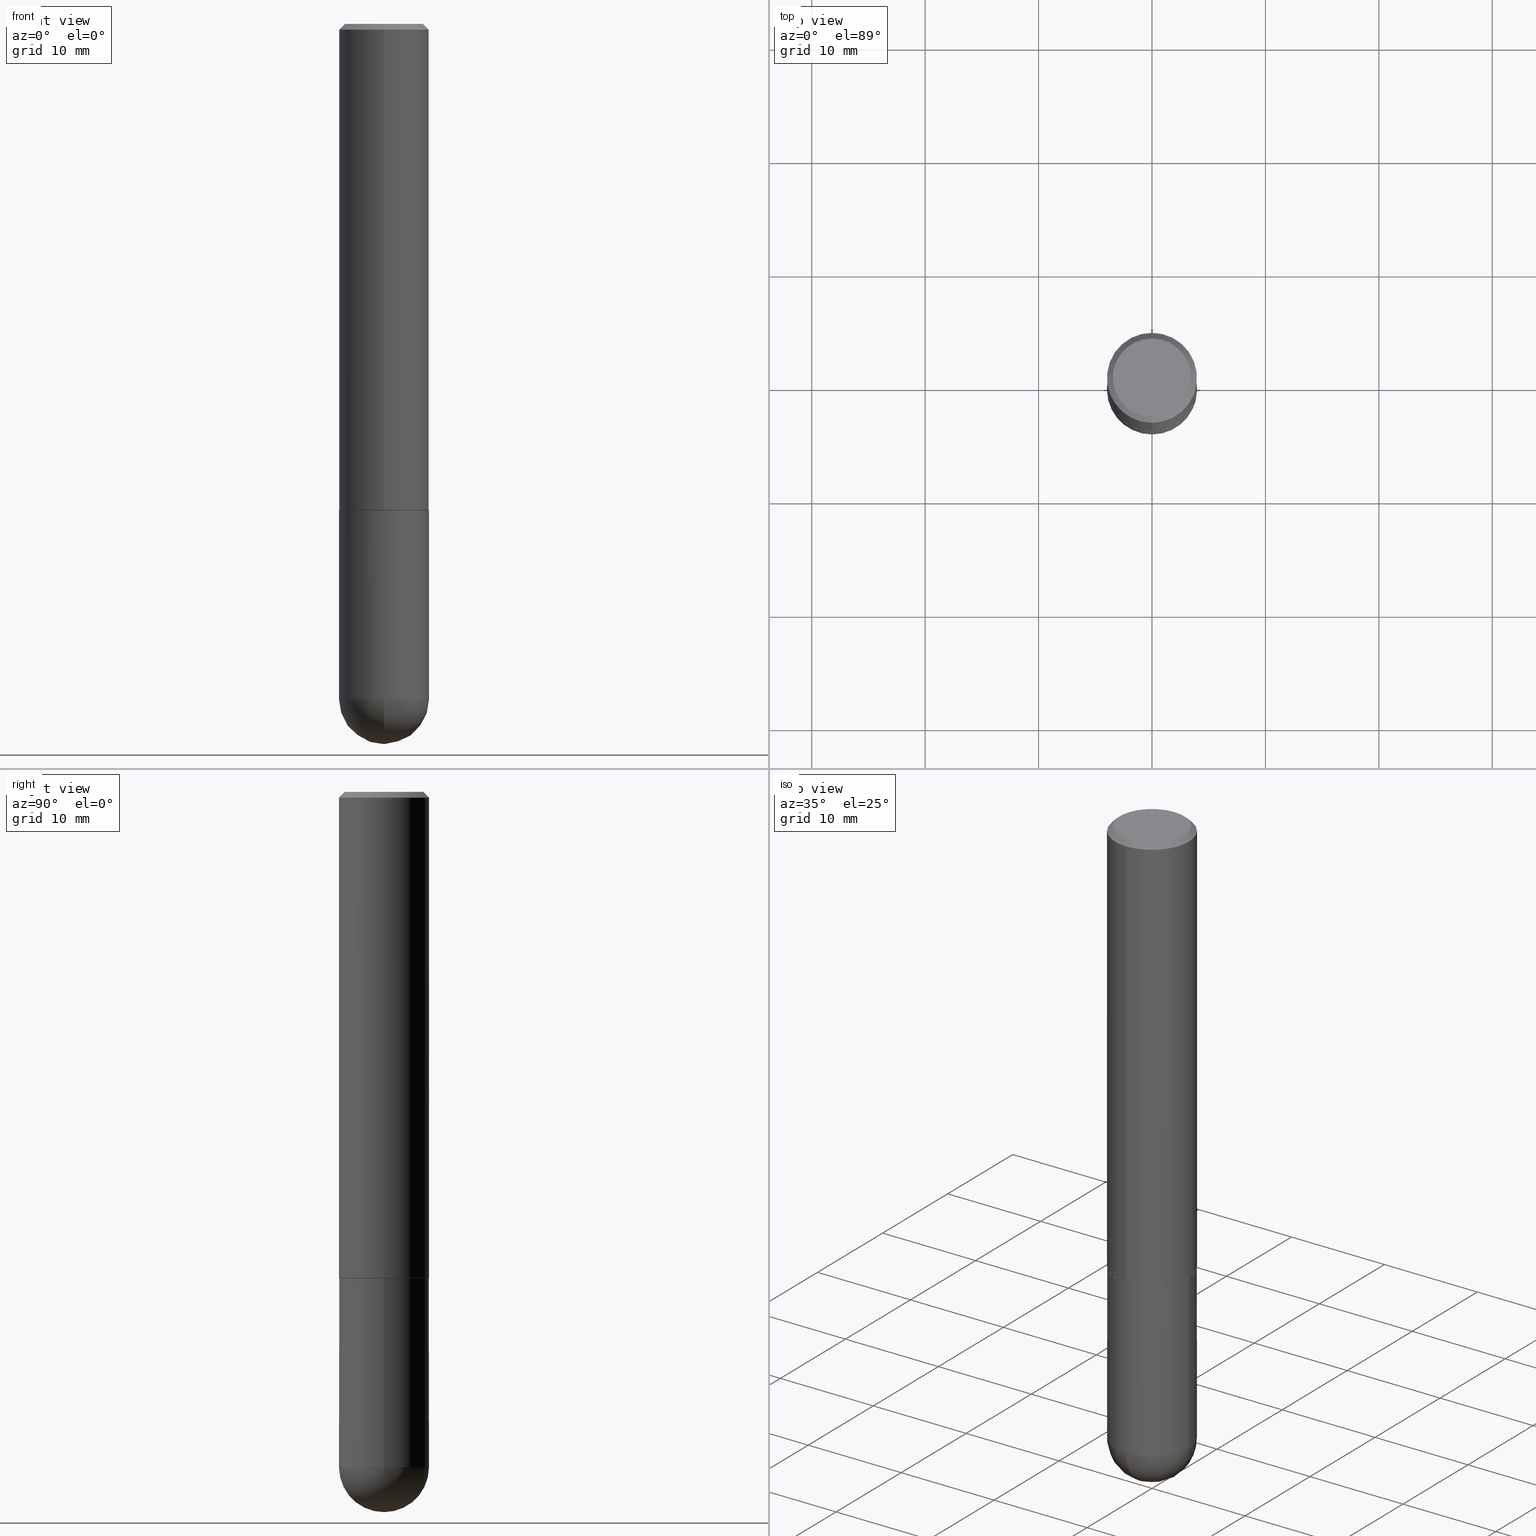
[diagram: canonical four-view strip — front | top / right | iso, engineering-drawing reading convention]
A machine part, canonical four-view strip (front | top / right | iso — engineering-drawing reading convention). The complete STEP part file that produces these views, byte-faithful:
ISO-10303-21;
HEADER;
FILE_DESCRIPTION (( 'STEP AP203' ),
    '1' );
FILE_NAME ('31149.STEP',
    '2024-02-21T16:48:06',
    ( '' ),
    ( '' ),
    'SwSTEP 2.0',
    'SolidWorks 2023',
    '' );
FILE_SCHEMA (( 'CONFIG_CONTROL_DESIGN' ));
ENDSEC;

DATA;
#1 = DIRECTION ( 'NONE',  ( 1.000000000000000000, -6.982962677686262766E-15, 0.000000000000000000 ) ) ;
#2 = CARTESIAN_POINT ( 'NONE',  ( 1.110223024625157132E-15, 0.1562500000000001110, -5.454067469963343169E-16 ) ) ;
#3 = APPROVAL_DATE_TIME ( #344, #378 ) ;
#4 = AXIS2_PLACEMENT_3D ( 'NONE', #337, #58, #28 ) ;
#5 = CIRCLE ( 'NONE', #222, 0.1562500000000000000 ) ;
#6 = ORIENTED_EDGE ( 'NONE', *, *, #275, .T. ) ;
#7 = CARTESIAN_POINT ( 'NONE',  ( 5.400447736582527652E-29, -8.657341756053672891E-15, -2.343750000000000000 ) ) ;
#8 = ADVANCED_FACE ( 'NONE', ( #206 ), #21, .T. ) ;
#9 = PERSON_AND_ORGANIZATION ( #151, #359 ) ;
#10 = LINE ( 'NONE', #78, #242 ) ;
#11 = DIRECTION ( 'NONE',  ( 6.982962677686265922E-15, 1.000000000000000000, -3.496765431890251398E-15 ) ) ;
#12 = DIRECTION ( 'NONE',  ( 0.000000000000000000, 0.000000000000000000, 1.000000000000000000 ) ) ;
#13 = EDGE_CURVE ( 'NONE', #241, #402, #167, .T. ) ;
#14 = DIRECTION ( 'NONE',  ( -2.446082020685560042E-29, 3.490603180776537498E-15, 1.000000000000000000 ) ) ;
#15 = VECTOR ( 'NONE', #363, 39.37007874015748143 ) ;
#16 = ORIENTED_EDGE ( 'NONE', *, *, #214, .F. ) ;
#17 = CALENDAR_DATE ( 2024, 21, 2 ) ;
#18 = DIRECTION ( 'NONE',  ( 1.000000000000000000, -6.982962677686266711E-15, 4.876176775795936353E-29 ) ) ;
#19 = FACE_OUTER_BOUND ( 'NONE', #270, .T. ) ;
#20 = EDGE_LOOP ( 'NONE', ( #364, #301, #229, #87 ) ) ;
#21 = CYLINDRICAL_SURFACE ( 'NONE', #160, 0.1562500000000001110 ) ;
#22 = APPLICATION_CONTEXT ( 'configuration controlled 3d designs of mechanical parts and assemblies' ) ;
#23 = CARTESIAN_POINT ( 'NONE',  ( 4.892164041371128702E-31, -6.981206361553086139E-17, -0.02000000000000003511 ) ) ;
#24 = VERTEX_POINT ( 'NONE', #115 ) ;
#25 = DIRECTION ( 'NONE',  ( -2.446082020685560042E-29, 3.490603180776537498E-15, 1.000000000000000000 ) ) ;
#26 = PRODUCT_RELATED_PRODUCT_CATEGORY ( 'detail', '', ( #136 ) ) ;
#27 = ORIENTED_EDGE ( 'NONE', *, *, #106, .F. ) ;
#28 = DIRECTION ( 'NONE',  ( -6.982962677686265922E-15, -1.000000000000000000, 3.519288880726909138E-15 ) ) ;
#29 = DIRECTION ( 'NONE',  ( 2.446082020685559481E-29, -3.490603180776537498E-15, -1.000000000000000000 ) ) ;
#30 = VECTOR ( 'NONE', #209, 39.37007874015748143 ) ;
#31 = ADVANCED_FACE ( 'NONE', ( #19 ), #373, .T. ) ;
#32 = UNCERTAINTY_MEASURE_WITH_UNIT (LENGTH_MEASURE( 1.000000000000000082E-05 ), #233, 'distance_accuracy_value', 'NONE');
#33 = CARTESIAN_POINT ( 'NONE',  ( -1.003347832174086081E-15, -0.1362500000000000100, 5.053546217749307002E-16 ) ) ;
#34 = SECURITY_CLASSIFICATION_LEVEL ( 'unclassified' ) ;
#35 = CARTESIAN_POINT ( 'NONE',  ( 5.731567514496413899E-29, -8.183159387913622595E-15, -2.343750000000000000 ) ) ;
#36 = CIRCLE ( 'NONE', #286, 0.1562500000000000000 ) ;
#37 = CALENDAR_DATE ( 2024, 21, 2 ) ;
#38 = APPROVAL_DATE_TIME ( #85, #341 ) ;
#39 = APPROVAL_STATUS ( 'not_yet_approved' ) ;
#40 = MECHANICAL_CONTEXT ( 'NONE', #217, 'mechanical' ) ;
#41 = CARTESIAN_POINT ( 'NONE',  ( 4.128986450917225387E-29, -5.892138169150795047E-15, -1.688000000000000167 ) ) ;
#42 = DIRECTION ( 'NONE',  ( 5.024295867788404755E-15, 0.7071067811865981989, 0.7071067811864968355 ) ) ;
#43 = CIRCLE ( 'NONE', #350, 0.1562500000000000000 ) ;
#44 = LOCAL_TIME ( 11, 48, 6.000000000000000000, #290 ) ;
#45 = CARTESIAN_POINT ( 'NONE',  ( 0.1562500000000000000, -6.984708418355709513E-15, -1.688000000000000167 ) ) ;
#46 = CC_DESIGN_PERSON_AND_ORGANIZATION_ASSIGNMENT ( #52, #178, ( #136 ) ) ;
#47 = EDGE_LOOP ( 'NONE', ( #361, #6, #92, #127, #84 ) ) ;
#48 = CIRCLE ( 'NONE', #328, 0.1562500000000002498 ) ;
#49 = LOCAL_TIME ( 11, 48, 6.000000000000000000, #216 ) ;
#50 = VERTEX_POINT ( 'NONE', #273 ) ;
#51 = EDGE_LOOP ( 'NONE', ( #171, #91, #118, #295 ) ) ;
#52 = PERSON_AND_ORGANIZATION ( #151, #359 ) ;
#53 = CC_DESIGN_PERSON_AND_ORGANIZATION_ASSIGNMENT ( #189, #258, ( #173 ) ) ;
#54 = CLOSED_SHELL ( 'NONE', ( #145, #68, #98, #143, #8, #59, #218, #289 ) ) ;
#55 = VECTOR ( 'NONE', #105, 39.37007874015748143 ) ;
#56 = PERSON_AND_ORGANIZATION ( #151, #359 ) ;
#57 = ORIENTED_EDGE ( 'NONE', *, *, #169, .T. ) ;
#58 = DIRECTION ( 'NONE',  ( -2.446082020685560042E-29, 3.490603180776537498E-15, 1.000000000000000000 ) ) ;
#59 = ADVANCED_FACE ( 'NONE', ( #356 ), #297, .T. ) ;
#60 = VERTEX_POINT ( 'NONE', #45 ) ;
#61 = DIRECTION ( 'NONE',  ( 1.000000000000000000, -6.982962677686262766E-15, 0.000000000000000000 ) ) ;
#62 = DIRECTION ( 'NONE',  ( 1.000000000000000000, -6.982962677686262766E-15, 0.000000000000000000 ) ) ;
#63 = PLANE ( 'NONE',  #125 ) ;
#64 = DIRECTION ( 'NONE',  ( -2.445468806185136877E-29, 3.491481338843145188E-15, 1.000000000000000000 ) ) ;
#65 = DIRECTION ( 'NONE',  ( -2.446082020685560042E-29, 3.490603180776537498E-15, 1.000000000000000000 ) ) ;
#66 = DIRECTION ( 'NONE',  ( 1.000000000000000000, -6.982962677686266711E-15, 4.876176775795936353E-29 ) ) ;
#67 = ORIENTED_EDGE ( 'NONE', *, *, #352, .F. ) ;
#68 = ADVANCED_FACE ( 'NONE', ( #234 ), #165, .T. ) ;
#69 = CARTESIAN_POINT ( 'NONE',  ( 1.091087918388479568E-15, 0.1562499999999999445, -0.02000000000000057981 ) ) ;
#70 = DIRECTION ( 'NONE',  ( -6.982962677686265922E-15, -1.000000000000000000, 3.519288880726909138E-15 ) ) ;
#71 = CONICAL_SURFACE ( 'NONE', #203, 0.1562500000000000000, 0.7853981633974469467 ) ;
#72 = CC_DESIGN_APPROVAL ( #378, ( #148 ) ) ;
#73 = DIRECTION ( 'NONE',  ( 6.982962677686265922E-15, 1.000000000000000000, -3.490603180776537498E-15 ) ) ;
#74 =( NAMED_UNIT ( * ) PLANE_ANGLE_UNIT ( ) SI_UNIT ( $, .RADIAN. ) );
#75 = EDGE_CURVE ( 'NONE', #402, #241, #406, .T. ) ;
#76 = ADVANCED_FACE ( 'NONE', ( #116 ), #326, .T. ) ;
#77 = FACE_OUTER_BOUND ( 'NONE', #238, .T. ) ;
#78 = CARTESIAN_POINT ( 'NONE',  ( 1.103117597267596553E-15, 0.1552499999999940872, -1.688000000000000611 ) ) ;
#79 = AXIS2_PLACEMENT_3D ( 'NONE', #266, #12, #137 ) ;
#80 = DIRECTION ( 'NONE',  ( -2.446082020685560042E-29, 3.490603180776537498E-15, 1.000000000000000000 ) ) ;
#81 = ADVANCED_FACE ( 'NONE', ( #142 ), #199, .T. ) ;
#82 = CARTESIAN_POINT ( 'NONE',  ( -7.279525024258520080E-46, 1.038801356182552890E-31, 2.975993839412750979E-17 ) ) ;
#83 = EDGE_LOOP ( 'NONE', ( #261, #237, #285, #305 ) ) ;
#84 = ORIENTED_EDGE ( 'NONE', *, *, #135, .T. ) ;
#85 = DATE_AND_TIME ( #170, #408 ) ;
#86 = DIRECTION ( 'NONE',  ( -6.982962677686265922E-15, -1.000000000000000000, 3.496765431890251792E-15 ) ) ;
#87 = ORIENTED_EDGE ( 'NONE', *, *, #110, .F. ) ;
#88 = AXIS2_PLACEMENT_3D ( 'NONE', #7, #382, #405 ) ;
#89 = DIRECTION ( 'NONE',  ( 2.446082020685560042E-29, -3.490603180776537498E-15, -1.000000000000000000 ) ) ;
#90 = APPROVAL_PERSON_ORGANIZATION ( #324, #341, #362 ) ;
#91 = ORIENTED_EDGE ( 'NONE', *, *, #188, .T. ) ;
#92 = ORIENTED_EDGE ( 'NONE', *, *, #277, .F. ) ;
#93 = CARTESIAN_POINT ( 'NONE',  ( 4.892164041371128702E-31, -6.981206361553086139E-17, -0.02000000000000003511 ) ) ;
#94 = CARTESIAN_POINT ( 'NONE',  ( 5.731567514496413899E-29, -8.183159387913622595E-15, -2.343750000000000000 ) ) ;
#95 = CARTESIAN_POINT ( 'NONE',  ( 1.110223024625178431E-15, 0.1562499999999943379, -1.687000000000000499 ) ) ;
#96 = CARTESIAN_POINT ( 'NONE',  ( 0.1562500000000000000, -8.129477862328905246E-15, -2.343750000000000000 ) ) ;
#97 = APPROVAL_STATUS ( 'not_yet_approved' ) ;
#98 = ADVANCED_FACE ( 'NONE', ( #77 ), #334, .T. ) ;
#99 = CC_DESIGN_PERSON_AND_ORGANIZATION_ASSIGNMENT ( #56, #370, ( #173 ) ) ;
#100 = DIRECTION ( 'NONE',  ( 2.438088387897960049E-29, -3.491481338843145188E-15, -1.000000000000000000 ) ) ;
#101 = MANIFOLD_SOLID_BREP ( 'Body-Move/Copy2[2]', #54 ) ;
#102 = VERTEX_POINT ( 'NONE', #121 ) ;
#103 = PERSON_AND_ORGANIZATION_ROLE ( 'classification_officer' ) ;
#104 = LINE ( 'NONE', #69, #30 ) ;
#105 = DIRECTION ( 'NONE',  ( -4.851104656540957175E-15, -0.7071067811865490160, -0.7071067811865460184 ) ) ;
#106 = EDGE_CURVE ( 'NONE', #50, #330, #399, .T. ) ;
#107 = VERTEX_POINT ( 'NONE', #243 ) ;
#108 = DIRECTION ( 'NONE',  ( 1.000000000000000000, -6.982962677686269077E-15, 0.000000000000000000 ) ) ;
#109 =( LENGTH_UNIT ( ) NAMED_UNIT ( * ) SI_UNIT ( $, .METRE. ) );
#110 = EDGE_CURVE ( 'NONE', #159, #330, #390, .T. ) ;
#111 = VECTOR ( 'NONE', #25, 39.37007874015748143 ) ;
#112 = EDGE_CURVE ( 'NONE', #24, #303, #36, .T. ) ;
#113 = CARTESIAN_POINT ( 'NONE',  ( 5.731567514496413899E-29, -8.183159387913622595E-15, -2.343750000000000000 ) ) ;
#114 = CIRCLE ( 'NONE', #138, 0.1562500000000000000 ) ;
#115 = CARTESIAN_POINT ( 'NONE',  ( -1.071952812151801215E-15, -0.1562500000000000833, -0.01999999999999948694 ) ) ;
#116 = FACE_OUTER_BOUND ( 'NONE', #47, .T. ) ;
#117 = DIRECTION ( 'NONE',  ( -2.446082020685560042E-29, 3.490603180776537498E-15, 1.000000000000000000 ) ) ;
#118 = ORIENTED_EDGE ( 'NONE', *, *, #369, .F. ) ;
#119 = CARTESIAN_POINT ( 'NONE',  ( -1.084104955710751547E-15, -0.1552500000000059110, -1.687999999999999501 ) ) ;
#120 = AXIS2_PLACEMENT_3D ( 'NONE', #175, #299, #18 ) ;
#121 = CARTESIAN_POINT ( 'NONE',  ( 1.106670310946397649E-15, 0.1552499999999940872, -1.688000000000000611 ) ) ;
#122 = ORIENTED_EDGE ( 'NONE', *, *, #294, .T. ) ;
#123 = PERSON_AND_ORGANIZATION ( #151, #359 ) ;
#124 = EDGE_CURVE ( 'NONE', #330, #24, #268, .T. ) ;
#125 = AXIS2_PLACEMENT_3D ( 'NONE', #132, #100, #190 ) ;
#126 = CARTESIAN_POINT ( 'NONE',  ( 4.128986450917225387E-29, -5.892138169150795047E-15, -1.688000000000000167 ) ) ;
#127 = ORIENTED_EDGE ( 'NONE', *, *, #257, .F. ) ;
#128 = CARTESIAN_POINT ( 'NONE',  ( 4.127951344840510809E-29, -5.893620499967230340E-15, -1.688000000000000167 ) ) ;
#129 = LINE ( 'NONE', #345, #395 ) ;
#130 = DIRECTION ( 'NONE',  ( 1.000000000000000000, -6.982962677686265922E-15, 4.883557194083112340E-29 ) ) ;
#131 = ORIENTED_EDGE ( 'NONE', *, *, #112, .F. ) ;
#132 = CARTESIAN_POINT ( 'NONE',  ( 1.091087918388520392E-15, 0.1562499999999940881, -1.688000000000000611 ) ) ;
#133 = CARTESIAN_POINT ( 'NONE',  ( 0.000000000000000000, 0.000000000000000000, 0.000000000000000000 ) ) ;
#134 = CARTESIAN_POINT ( 'NONE',  ( 0.1562500000000000000, -1.091087918388479174E-15, 7.619026212181150377E-30 ) ) ;
#135 = EDGE_CURVE ( 'NONE', #336, #316, #114, .T. ) ;
#136 = PRODUCT ( '31149', '31149', '', ( #40 ) ) ;
#137 = DIRECTION ( 'NONE',  ( 1.000000000000000000, 0.000000000000000000, 0.000000000000000000 ) ) ;
#138 = AXIS2_PLACEMENT_3D ( 'NONE', #113, #259, #351 ) ;
#139 = DIRECTION ( 'NONE',  ( -2.446082020685560042E-29, 3.490603180776537498E-15, 1.000000000000000000 ) ) ;
#140 = EDGE_LOOP ( 'NONE', ( #144, #176 ) ) ;
#141 = DATE_TIME_ROLE ( 'creation_date' ) ;
#142 = FACE_OUTER_BOUND ( 'NONE', #51, .T. ) ;
#143 = ADVANCED_FACE ( 'NONE', ( #250 ), #71, .T. ) ;
#144 = ORIENTED_EDGE ( 'NONE', *, *, #75, .T. ) ;
#145 = ADVANCED_FACE ( 'NONE', ( #153 ), #298, .T. ) ;
#146 = DIRECTION ( 'NONE',  ( 6.982962677686265922E-15, 1.000000000000000000, -3.496765431890251398E-15 ) ) ;
#147 = AXIS2_PLACEMENT_3D ( 'NONE', #94, #221, #62 ) ;
#148 = PRODUCT_DEFINITION ( 'UNKNOWN', '', #173, #366 ) ;
#149 = CARTESIAN_POINT ( 'NONE',  ( -0.1562500000000000000, -5.928166919315269532E-15, -1.688000000000000167 ) ) ;
#150 = ORIENTED_EDGE ( 'NONE', *, *, #369, .T. ) ;
#151 = PERSON ( 'UNSPECIFIED', 'UNSPECIFIED', 'UNSPECIFIED', ('UNSPECIFIED'), ('UNSPECIFIED'), ('UNSPECIFIED') ) ;
#152 = AXIS2_PLACEMENT_3D ( 'NONE', #126, #313, #194 ) ;
#153 = FACE_OUTER_BOUND ( 'NONE', #248, .T. ) ;
#154 = CC_DESIGN_APPROVAL ( #196, ( #319 ) ) ;
#155 = DIRECTION ( 'NONE',  ( -2.446082020685560042E-29, 3.490603180776537498E-15, 1.000000000000000000 ) ) ;
#156 = DIRECTION ( 'NONE',  ( -2.445468806185136597E-29, 3.491481338843145583E-15, 1.000000000000000000 ) ) ;
#157 = ORIENTED_EDGE ( 'NONE', *, *, #193, .F. ) ;
#158 = CARTESIAN_POINT ( 'NONE',  ( -1.110223024625101517E-15, -0.1562500000000085487, -2.343749999999999556 ) ) ;
#159 = VERTEX_POINT ( 'NONE', #95 ) ;
#160 = AXIS2_PLACEMENT_3D ( 'NONE', #371, #335, #191 ) ;
#161 = COORDINATED_UNIVERSAL_TIME_OFFSET ( 5, 0, .BEHIND. ) ;
#162 = CYLINDRICAL_SURFACE ( 'NONE', #276, 0.1562500000000000000 ) ;
#163 = APPROVAL_ROLE ( '' ) ;
#164 = APPROVAL_ROLE ( '' ) ;
#165 = CYLINDRICAL_SURFACE ( 'NONE', #349, 0.1562500000000001110 ) ;
#166 = DATE_AND_TIME ( #353, #44 ) ;
#167 = CIRCLE ( 'NONE', #333, 0.1362500000000000100 ) ;
#168 = VECTOR ( 'NONE', #195, 39.37007874015748143 ) ;
#169 = EDGE_CURVE ( 'NONE', #274, #336, #43, .T. ) ;
#170 = CALENDAR_DATE ( 2024, 21, 2 ) ;
#171 = ORIENTED_EDGE ( 'NONE', *, *, #388, .F. ) ;
#172 = AXIS2_PLACEMENT_3D ( 'NONE', #306, #315, #304 ) ;
#173 = PRODUCT_DEFINITION_FORMATION_WITH_SPECIFIED_SOURCE ( 'ANY', '', #136, .NOT_KNOWN. ) ;
#174 = CC_DESIGN_PERSON_AND_ORGANIZATION_ASSIGNMENT ( #383, #308, ( #148 ) ) ;
#175 = CARTESIAN_POINT ( 'NONE',  ( 0.000000000000000000, 0.000000000000000000, 0.000000000000000000 ) ) ;
#176 = ORIENTED_EDGE ( 'NONE', *, *, #13, .T. ) ;
#177 = VERTEX_POINT ( 'NONE', #149 ) ;
#178 = PERSON_AND_ORGANIZATION_ROLE ( 'design_owner' ) ;
#179 = EDGE_CURVE ( 'NONE', #303, #24, #267, .T. ) ;
#180 = CIRCLE ( 'NONE', #323, 0.1562500000000000000 ) ;
#181 = APPROVAL_PERSON_ORGANIZATION ( #123, #378, #163 ) ;
#182 = ORIENTED_EDGE ( 'NONE', *, *, #282, .T. ) ;
#183 = CALENDAR_DATE ( 2024, 21, 2 ) ;
#184 = ORIENTED_EDGE ( 'NONE', *, *, #246, .F. ) ;
#185 = AXIS2_PLACEMENT_3D ( 'NONE', #35, #156, #1 ) ;
#186 = FACE_OUTER_BOUND ( 'NONE', #296, .T. ) ;
#187 = CARTESIAN_POINT ( 'NONE',  ( 5.400447736582527652E-29, -8.657341756053672891E-15, -2.343750000000000000 ) ) ;
#188 = EDGE_CURVE ( 'NONE', #244, #274, #339, .T. ) ;
#189 = PERSON_AND_ORGANIZATION ( #151, #359 ) ;
#190 = DIRECTION ( 'NONE',  ( -1.000000000000000000, 6.982962677686265922E-15, -4.876176775795935793E-29 ) ) ;
#191 = DIRECTION ( 'NONE',  ( -6.982962677686265922E-15, -1.000000000000000000, 3.490603180776537104E-15 ) ) ;
#192 = CARTESIAN_POINT ( 'NONE',  ( 1.021258291611616664E-15, 0.1362500000000000100, -4.458347449866756683E-16 ) ) ;
#193 = EDGE_CURVE ( 'NONE', #50, #102, #236, .T. ) ;
#194 = DIRECTION ( 'NONE',  ( -6.982962677686265922E-15, -1.000000000000000000, 3.490603180776537498E-15 ) ) ;
#195 = DIRECTION ( 'NONE',  ( -2.445468806185136877E-29, 3.491481338843145188E-15, 1.000000000000000000 ) ) ;
#196 = APPROVAL ( #39, 'UNSPECIFIED' ) ;
#197 = ORIENTED_EDGE ( 'NONE', *, *, #352, .T. ) ;
#198 =( NAMED_UNIT ( * ) SI_UNIT ( $, .STERADIAN. ) SOLID_ANGLE_UNIT ( ) );
#199 = SPHERICAL_SURFACE ( 'NONE', #293, 0.1562500000000002498 ) ;
#200 = DATE_TIME_ROLE ( 'classification_date' ) ;
#201 = LENGTH_MEASURE_WITH_UNIT ( LENGTH_MEASURE( 0.02539999999999999897 ), #109 );
#202 = CARTESIAN_POINT ( 'NONE',  ( -1.091087918388479765E-15, -0.1562500000000001110, 5.454067469963343169E-16 ) ) ;
#203 = AXIS2_PLACEMENT_3D ( 'NONE', #93, #89, #283 ) ;
#204 = DIRECTION ( 'NONE',  ( -6.982962677686265922E-15, -1.000000000000000000, 3.519288880726909138E-15 ) ) ;
#205 = ORIENTED_EDGE ( 'NONE', *, *, #169, .F. ) ;
#206 = FACE_OUTER_BOUND ( 'NONE', #409, .T. ) ;
#207 = ORIENTED_EDGE ( 'NONE', *, *, #404, .T. ) ;
#208 = DIRECTION ( 'NONE',  ( 2.446082020685560042E-29, -3.490603180776537498E-15, -1.000000000000000000 ) ) ;
#209 = DIRECTION ( 'NONE',  ( 4.937700262164540942E-15, 0.7071067811865441310, -0.7071067811865509034 ) ) ;
#210 = ORIENTED_EDGE ( 'NONE', *, *, #277, .T. ) ;
#211 = CARTESIAN_POINT ( 'NONE',  ( 5.400447736582527652E-29, -8.657341756053672891E-15, -2.343750000000000000 ) ) ;
#212 = AXIS2_PLACEMENT_3D ( 'NONE', #401, #208, #272 ) ;
#213 = DIRECTION ( 'NONE',  ( -1.000000000000000000, 6.982962677686265922E-15, -4.883557194083112340E-29 ) ) ;
#214 = EDGE_CURVE ( 'NONE', #330, #159, #407, .T. ) ;
#215 = DIRECTION ( 'NONE',  ( -6.982962677686265133E-15, -1.000000000000000000, 3.496765431890256920E-15 ) ) ;
#216 = COORDINATED_UNIVERSAL_TIME_OFFSET ( 5, 0, .BEHIND. ) ;
#217 = APPLICATION_CONTEXT ( 'configuration controlled 3d designs of mechanical parts and assemblies' ) ;
#218 = ADVANCED_FACE ( 'NONE', ( #186 ), #312, .F. ) ;
#219 = ORIENTED_EDGE ( 'NONE', *, *, #135, .F. ) ;
#220 = DIRECTION ( 'NONE',  ( -6.982962677686265922E-15, -1.000000000000000000, 3.496765431890251792E-15 ) ) ;
#221 = DIRECTION ( 'NONE',  ( -2.445468806185136597E-29, 3.491481338843145583E-15, 1.000000000000000000 ) ) ;
#222 = AXIS2_PLACEMENT_3D ( 'NONE', #387, #389, #108 ) ;
#223 = CARTESIAN_POINT ( 'NONE',  ( 4.126540368896540526E-29, -5.888647565970019255E-15, -1.687000000000000055 ) ) ;
#224 = DIRECTION ( 'NONE',  ( 6.982962677686265922E-15, 1.000000000000000000, 0.000000000000000000 ) ) ;
#225 = CARTESIAN_POINT ( 'NONE',  ( -7.279525024258520080E-46, 1.038801356182552890E-31, 2.975993839412750979E-17 ) ) ;
#226 = DIRECTION ( 'NONE',  ( -2.445468806185136597E-29, 3.491481338843145583E-15, 1.000000000000000000 ) ) ;
#227 = ORIENTED_EDGE ( 'NONE', *, *, #388, .T. ) ;
#228 = CARTESIAN_POINT ( 'NONE',  ( -1.091087918388439336E-15, -0.1562500000000060785, -1.686999999999999611 ) ) ;
#229 = ORIENTED_EDGE ( 'NONE', *, *, #106, .T. ) ;
#230 = AXIS2_PLACEMENT_3D ( 'NONE', #82, #139, #269 ) ;
#231 = CIRCLE ( 'NONE', #147, 0.1562500000000000000 ) ;
#232 = CC_DESIGN_APPROVAL ( #341, ( #173 ) ) ;
#233 =( CONVERSION_BASED_UNIT ( 'INCH', #201 ) LENGTH_UNIT ( ) NAMED_UNIT ( #410 ) );
#234 = FACE_OUTER_BOUND ( 'NONE', #376, .T. ) ;
#235 = EDGE_CURVE ( 'NONE', #316, #107, #365, .T. ) ;
#236 = CIRCLE ( 'NONE', #4, 0.1552499999999999991 ) ;
#237 = ORIENTED_EDGE ( 'NONE', *, *, #75, .F. ) ;
#238 = EDGE_LOOP ( 'NONE', ( #249, #182, #360, #184 ) ) ;
#239 = ADVANCED_FACE ( 'NONE', ( #342 ), #63, .F. ) ;
#240 = DIRECTION ( 'NONE',  ( -2.446082020685560042E-29, 3.490603180776537498E-15, 1.000000000000000000 ) ) ;
#241 = VERTEX_POINT ( 'NONE', #33 ) ;
#242 = VECTOR ( 'NONE', #42, 39.37007874015748143 ) ;
#243 = CARTESIAN_POINT ( 'NONE',  ( -0.1562500000000000000, -5.928166919315270321E-15, -2.343750000000000000 ) ) ;
#244 = VERTEX_POINT ( 'NONE', #358 ) ;
#245 = CC_DESIGN_DATE_AND_TIME_ASSIGNMENT ( #288, #200, ( #319 ) ) ;
#246 = EDGE_CURVE ( 'NONE', #402, #303, #104, .T. ) ;
#247 = AXIS2_PLACEMENT_3D ( 'NONE', #347, #155, #70 ) ;
#248 = EDGE_LOOP ( 'NONE', ( #317, #207, #16, #27 ) ) ;
#249 = ORIENTED_EDGE ( 'NONE', *, *, #13, .F. ) ;
#250 = FACE_OUTER_BOUND ( 'NONE', #83, .T. ) ;
#251 = DIRECTION ( 'NONE',  ( -2.445468806185136597E-29, 3.491481338843145583E-15, 1.000000000000000000 ) ) ;
#252 = CARTESIAN_POINT ( 'NONE',  ( 1.091087918388479568E-15, 0.1562499999999999445, -0.02000000000000057981 ) ) ;
#253 =( GEOMETRIC_REPRESENTATION_CONTEXT ( 3 ) GLOBAL_UNCERTAINTY_ASSIGNED_CONTEXT ( ( #32 ) ) GLOBAL_UNIT_ASSIGNED_CONTEXT ( ( #233, #74, #198 ) ) REPRESENTATION_CONTEXT ( 'NONE', 'WORKASPACE' ) );
#254 = LOCAL_TIME ( 11, 48, 6.000000000000000000, #161 ) ;
#255 = ORIENTED_EDGE ( 'NONE', *, *, #331, .F. ) ;
#256 = DIRECTION ( 'NONE',  ( -2.446082020685560042E-29, 3.490603180776537498E-15, 1.000000000000000000 ) ) ;
#257 = EDGE_CURVE ( 'NONE', #336, #60, #396, .T. ) ;
#258 = PERSON_AND_ORGANIZATION_ROLE ( 'design_supplier' ) ;
#259 = DIRECTION ( 'NONE',  ( -2.445468806185136597E-29, 3.491481338843145583E-15, 1.000000000000000000 ) ) ;
#260 = SHAPE_DEFINITION_REPRESENTATION ( #292, #321 ) ;
#261 = ORIENTED_EDGE ( 'NONE', *, *, #282, .F. ) ;
#262 = AXIS2_PLACEMENT_3D ( 'NONE', #329, #240, #86 ) ;
#263 = DIRECTION ( 'NONE',  ( -6.982962677686265922E-15, -1.000000000000000000, 3.490603180776536709E-15 ) ) ;
#264 = ORIENTED_EDGE ( 'NONE', *, *, #179, .F. ) ;
#265 = AXIS2_PLACEMENT_3D ( 'NONE', #41, #14, #204 ) ;
#266 = CARTESIAN_POINT ( 'NONE',  ( 0.000000000000000000, 0.000000000000000000, 0.000000000000000000 ) ) ;
#267 = CIRCLE ( 'NONE', #403, 0.1562500000000000000 ) ;
#268 = LINE ( 'NONE', #202, #111 ) ;
#269 = DIRECTION ( 'NONE',  ( -6.982962677686265922E-15, -1.000000000000000000, 3.490603180776536709E-15 ) ) ;
#270 = EDGE_LOOP ( 'NONE', ( #325, #227, #219, #205 ) ) ;
#271 = APPROVAL_STATUS ( 'not_yet_approved' ) ;
#272 = DIRECTION ( 'NONE',  ( 6.982962677686265133E-15, 1.000000000000000000, -3.496765431890256920E-15 ) ) ;
#273 = CARTESIAN_POINT ( 'NONE',  ( -1.084104955710751547E-15, -0.1552500000000059110, -1.687999999999999501 ) ) ;
#274 = VERTEX_POINT ( 'NONE', #158 ) ;
#275 = EDGE_CURVE ( 'NONE', #107, #177, #129, .T. ) ;
#276 = AXIS2_PLACEMENT_3D ( 'NONE', #133, #226, #66 ) ;
#277 = EDGE_CURVE ( 'NONE', #60, #177, #5, .T. ) ;
#278 = CARTESIAN_POINT ( 'NONE',  ( 4.892164041371128702E-31, -6.981206361553086139E-17, -0.02000000000000003511 ) ) ;
#279 = VECTOR ( 'NONE', #256, 39.37007874015748143 ) ;
#280 = APPROVAL_DATE_TIME ( #166, #196 ) ;
#281 = CARTESIAN_POINT ( 'NONE',  ( 5.731567514496413899E-29, -8.183159387913622595E-15, -2.343750000000000000 ) ) ;
#282 = EDGE_CURVE ( 'NONE', #241, #24, #338, .T. ) ;
#283 = DIRECTION ( 'NONE',  ( 6.982962677686265133E-15, 1.000000000000000000, -3.496765431890256920E-15 ) ) ;
#284 = CARTESIAN_POINT ( 'NONE',  ( 9.514286648347537604E-16, 0.1362500000000000100, -4.607147141837394756E-16 ) ) ;
#285 = ORIENTED_EDGE ( 'NONE', *, *, #246, .T. ) ;
#286 = AXIS2_PLACEMENT_3D ( 'NONE', #23, #367, #332 ) ;
#287 = CARTESIAN_POINT ( 'NONE',  ( 1.091087918388535577E-15, 0.1562499999999916733, -2.343750000000000444 ) ) ;
#288 = DATE_AND_TIME ( #37, #254 ) ;
#289 = ADVANCED_FACE ( 'NONE', ( #314 ), #380, .F. ) ;
#290 = COORDINATED_UNIVERSAL_TIME_OFFSET ( 5, 0, .BEHIND. ) ;
#291 = ADVANCED_FACE ( 'NONE', ( #307 ), #162, .T. ) ;
#292 = PRODUCT_DEFINITION_SHAPE ( 'NONE', 'NONE',  #148 ) ;
#293 = AXIS2_PLACEMENT_3D ( 'NONE', #322, #300, #146 ) ;
#294 = EDGE_CURVE ( 'NONE', #159, #303, #343, .T. ) ;
#295 = ORIENTED_EDGE ( 'NONE', *, *, #235, .F. ) ;
#296 = EDGE_LOOP ( 'NONE', ( #157, #255 ) ) ;
#297 = CONICAL_SURFACE ( 'NONE', #265, 0.1552499999999999991, 0.7853981633975165577 ) ;
#298 = CONICAL_SURFACE ( 'NONE', #172, 0.1552499999999999991, 0.7853981633975165577 ) ;
#299 = DIRECTION ( 'NONE',  ( -2.445468806185136597E-29, 3.491481338843145583E-15, 1.000000000000000000 ) ) ;
#300 = DIRECTION ( 'NONE',  ( -1.000000000000000000, 6.982962677686265922E-15, -4.883557194083112340E-29 ) ) ;
#301 = ORIENTED_EDGE ( 'NONE', *, *, #331, .T. ) ;
#302 = APPLICATION_PROTOCOL_DEFINITION ( 'international standard', 'config_control_design', 1994, #22 ) ;
#303 = VERTEX_POINT ( 'NONE', #252 ) ;
#304 = DIRECTION ( 'NONE',  ( -6.982962677686265922E-15, -1.000000000000000000, 3.519288880726909138E-15 ) ) ;
#305 = ORIENTED_EDGE ( 'NONE', *, *, #179, .T. ) ;
#306 = CARTESIAN_POINT ( 'NONE',  ( 4.128986450917225387E-29, -5.892138169150795047E-15, -1.688000000000000167 ) ) ;
#307 = FACE_OUTER_BOUND ( 'NONE', #397, .T. ) ;
#308 = PERSON_AND_ORGANIZATION_ROLE ( 'creator' ) ;
#309 = CIRCLE ( 'NONE', #247, 0.1552499999999999991 ) ;
#310 = ORIENTED_EDGE ( 'NONE', *, *, #275, .F. ) ;
#311 = LOCAL_TIME ( 11, 48, 6.000000000000000000, #391 ) ;
#312 = PLANE ( 'NONE',  #152 ) ;
#313 = DIRECTION ( 'NONE',  ( -2.446082020685559481E-29, 3.490603180776537498E-15, 1.000000000000000000 ) ) ;
#314 = FACE_OUTER_BOUND ( 'NONE', #140, .T. ) ;
#315 = DIRECTION ( 'NONE',  ( -2.446082020685560042E-29, 3.490603180776537498E-15, 1.000000000000000000 ) ) ;
#316 = VERTEX_POINT ( 'NONE', #287 ) ;
#317 = ORIENTED_EDGE ( 'NONE', *, *, #193, .T. ) ;
#318 = AXIS2_PLACEMENT_3D ( 'NONE', #284, #29, #73 ) ;
#319 = SECURITY_CLASSIFICATION ( '', '', #34 ) ;
#320 = PERSON_AND_ORGANIZATION ( #151, #359 ) ;
#321 = ADVANCED_BREP_SHAPE_REPRESENTATION ( '31149', ( #372, #101, #79 ), #253 ) ;
#322 = CARTESIAN_POINT ( 'NONE',  ( 5.400447736582527652E-29, -8.657341756053672891E-15, -2.343750000000000000 ) ) ;
#323 = AXIS2_PLACEMENT_3D ( 'NONE', #128, #251, #377 ) ;
#324 = PERSON_AND_ORGANIZATION ( #151, #359 ) ;
#325 = ORIENTED_EDGE ( 'NONE', *, *, #188, .F. ) ;
#326 = CYLINDRICAL_SURFACE ( 'NONE', #120, 0.1562500000000000000 ) ;
#327 = ORIENTED_EDGE ( 'NONE', *, *, #124, .F. ) ;
#328 = AXIS2_PLACEMENT_3D ( 'NONE', #187, #130, #224 ) ;
#329 = CARTESIAN_POINT ( 'NONE',  ( 4.126540368896540526E-29, -5.888647565970019255E-15, -1.687000000000000055 ) ) ;
#330 = VERTEX_POINT ( 'NONE', #228 ) ;
#331 = EDGE_CURVE ( 'NONE', #102, #50, #309, .T. ) ;
#332 = DIRECTION ( 'NONE',  ( -6.982962677686265133E-15, -1.000000000000000000, 3.496765431890256920E-15 ) ) ;
#333 = AXIS2_PLACEMENT_3D ( 'NONE', #225, #117, #263 ) ;
#334 = CONICAL_SURFACE ( 'NONE', #212, 0.1562500000000000000, 0.7853981633974469467 ) ;
#335 = DIRECTION ( 'NONE',  ( -2.446082020685560042E-29, 3.490603180776537498E-15, 1.000000000000000000 ) ) ;
#336 = VERTEX_POINT ( 'NONE', #96 ) ;
#337 = CARTESIAN_POINT ( 'NONE',  ( 4.128986450917225387E-29, -5.892138169150795047E-15, -1.688000000000000167 ) ) ;
#338 = LINE ( 'NONE', #412, #55 ) ;
#339 = CIRCLE ( 'NONE', #88, 0.1562500000000002498 ) ;
#340 = CC_DESIGN_SECURITY_CLASSIFICATION ( #319, ( #173 ) ) ;
#341 = APPROVAL ( #271, 'UNSPECIFIED' ) ;
#342 = FACE_OUTER_BOUND ( 'NONE', #368, .T. ) ;
#343 = LINE ( 'NONE', #2, #279 ) ;
#344 = DATE_AND_TIME ( #183, #49 ) ;
#345 = CARTESIAN_POINT ( 'NONE',  ( -0.1562500000000000000, 1.110223024625156540E-15, -7.685836078523291160E-30 ) ) ;
#346 = ORIENTED_EDGE ( 'NONE', *, *, #294, .F. ) ;
#347 = CARTESIAN_POINT ( 'NONE',  ( 4.128986450917225387E-29, -5.892138169150795047E-15, -1.688000000000000167 ) ) ;
#348 = CC_DESIGN_DATE_AND_TIME_ASSIGNMENT ( #354, #141, ( #148 ) ) ;
#349 = AXIS2_PLACEMENT_3D ( 'NONE', #392, #80, #394 ) ;
#350 = AXIS2_PLACEMENT_3D ( 'NONE', #281, #379, #61 ) ;
#351 = DIRECTION ( 'NONE',  ( 1.000000000000000000, -6.982962677686262766E-15, 0.000000000000000000 ) ) ;
#352 = EDGE_CURVE ( 'NONE', #177, #60, #180, .T. ) ;
#353 = CALENDAR_DATE ( 2024, 21, 2 ) ;
#354 = DATE_AND_TIME ( #17, #311 ) ;
#355 = AXIS2_PLACEMENT_3D ( 'NONE', #211, #213, #11 ) ;
#356 = FACE_OUTER_BOUND ( 'NONE', #20, .T. ) ;
#357 = CLOSED_SHELL ( 'NONE', ( #76, #81, #31, #239, #291 ) ) ;
#358 = CARTESIAN_POINT ( 'NONE',  ( 5.789233224183170584E-29, -9.193318162129576161E-15, -2.500000000000000000 ) ) ;
#359 = ORGANIZATION ( 'UNSPECIFIED', 'UNSPECIFIED', '' ) ;
#360 = ORIENTED_EDGE ( 'NONE', *, *, #112, .T. ) ;
#361 = ORIENTED_EDGE ( 'NONE', *, *, #235, .T. ) ;
#362 = APPROVAL_ROLE ( '' ) ;
#363 = DIRECTION ( 'NONE',  ( -4.937700262164884886E-15, -0.7071067811865933139, 0.7071067811865017205 ) ) ;
#364 = ORIENTED_EDGE ( 'NONE', *, *, #404, .F. ) ;
#365 = CIRCLE ( 'NONE', #185, 0.1562500000000000000 ) ;
#366 = DESIGN_CONTEXT ( 'detailed design', #22, 'design' ) ;
#367 = DIRECTION ( 'NONE',  ( -2.446082020685560042E-29, 3.490603180776537498E-15, 1.000000000000000000 ) ) ;
#368 = EDGE_LOOP ( 'NONE', ( #210, #197 ) ) ;
#369 = EDGE_CURVE ( 'NONE', #107, #274, #231, .T. ) ;
#370 = PERSON_AND_ORGANIZATION_ROLE ( 'creator' ) ;
#371 = CARTESIAN_POINT ( 'NONE',  ( 0.000000000000000000, 0.000000000000000000, 0.000000000000000000 ) ) ;
#372 = MANIFOLD_SOLID_BREP ( 'Body-Move/Copy2[1]', #357 ) ;
#373 = SPHERICAL_SURFACE ( 'NONE', #355, 0.1562500000000002498 ) ;
#374 = AXIS2_PLACEMENT_3D ( 'NONE', #223, #411, #220 ) ;
#375 = ORIENTED_EDGE ( 'NONE', *, *, #124, .T. ) ;
#376 = EDGE_LOOP ( 'NONE', ( #400, #122, #131, #327 ) ) ;
#377 = DIRECTION ( 'NONE',  ( 1.000000000000000000, -6.982962677686269077E-15, 0.000000000000000000 ) ) ;
#378 = APPROVAL ( #97, 'UNSPECIFIED' ) ;
#379 = DIRECTION ( 'NONE',  ( -2.445468806185136597E-29, 3.491481338843145583E-15, 1.000000000000000000 ) ) ;
#380 = PLANE ( 'NONE',  #318 ) ;
#381 = APPROVAL_PERSON_ORGANIZATION ( #9, #196, #164 ) ;
#382 = DIRECTION ( 'NONE',  ( -1.000000000000000000, 7.105427357601001070E-15, -4.926315508542082329E-29 ) ) ;
#383 = PERSON_AND_ORGANIZATION ( #151, #359 ) ;
#384 = ORIENTED_EDGE ( 'NONE', *, *, #110, .T. ) ;
#385 = ORIENTED_EDGE ( 'NONE', *, *, #257, .T. ) ;
#386 = CC_DESIGN_PERSON_AND_ORGANIZATION_ASSIGNMENT ( #320, #103, ( #319 ) ) ;
#387 = CARTESIAN_POINT ( 'NONE',  ( 4.127951344840510809E-29, -5.893620499967230340E-15, -1.688000000000000167 ) ) ;
#388 = EDGE_CURVE ( 'NONE', #244, #316, #48, .T. ) ;
#389 = DIRECTION ( 'NONE',  ( -2.445468806185136597E-29, 3.491481338843145583E-15, 1.000000000000000000 ) ) ;
#390 = CIRCLE ( 'NONE', #262, 0.1562500000000002220 ) ;
#391 = COORDINATED_UNIVERSAL_TIME_OFFSET ( 5, 0, .BEHIND. ) ;
#392 = CARTESIAN_POINT ( 'NONE',  ( 0.000000000000000000, 0.000000000000000000, 0.000000000000000000 ) ) ;
#393 = APPLICATION_PROTOCOL_DEFINITION ( 'international standard', 'config_control_design', 1994, #217 ) ;
#394 = DIRECTION ( 'NONE',  ( -6.982962677686265922E-15, -1.000000000000000000, 3.490603180776537104E-15 ) ) ;
#395 = VECTOR ( 'NONE', #64, 39.37007874015748143 ) ;
#396 = LINE ( 'NONE', #134, #168 ) ;
#397 = EDGE_LOOP ( 'NONE', ( #310, #150, #57, #385, #67 ) ) ;
#398 = COORDINATED_UNIVERSAL_TIME_OFFSET ( 5, 0, .BEHIND. ) ;
#399 = LINE ( 'NONE', #119, #15 ) ;
#400 = ORIENTED_EDGE ( 'NONE', *, *, #214, .T. ) ;
#401 = CARTESIAN_POINT ( 'NONE',  ( 4.892164041371128702E-31, -6.981206361553086139E-17, -0.02000000000000003511 ) ) ;
#402 = VERTEX_POINT ( 'NONE', #192 ) ;
#403 = AXIS2_PLACEMENT_3D ( 'NONE', #278, #65, #215 ) ;
#404 = EDGE_CURVE ( 'NONE', #102, #159, #10, .T. ) ;
#405 = DIRECTION ( 'NONE',  ( -7.105427357601000281E-15, -1.000000000000000000, 0.000000000000000000 ) ) ;
#406 = CIRCLE ( 'NONE', #230, 0.1362500000000000100 ) ;
#407 = CIRCLE ( 'NONE', #374, 0.1562500000000002220 ) ;
#408 = LOCAL_TIME ( 11, 48, 6.000000000000000000, #398 ) ;
#409 = EDGE_LOOP ( 'NONE', ( #346, #384, #375, #264 ) ) ;
#410 = DIMENSIONAL_EXPONENTS ( 1.000000000000000000, 0.000000000000000000, 0.000000000000000000, 0.000000000000000000, 0.000000000000000000, 0.000000000000000000, 0.000000000000000000 ) ;
#411 = DIRECTION ( 'NONE',  ( -2.446082020685560042E-29, 3.490603180776537498E-15, 1.000000000000000000 ) ) ;
#412 = CARTESIAN_POINT ( 'NONE',  ( -1.071952812151801215E-15, -0.1562500000000000833, -0.01999999999999948694 ) ) ;
ENDSEC;
END-ISO-10303-21;
